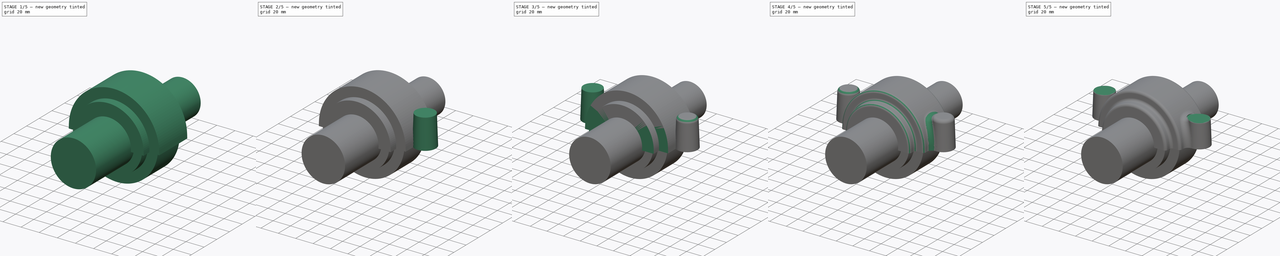
[diagram: build sequence overview — one tinted view per stage of 5, left to right]
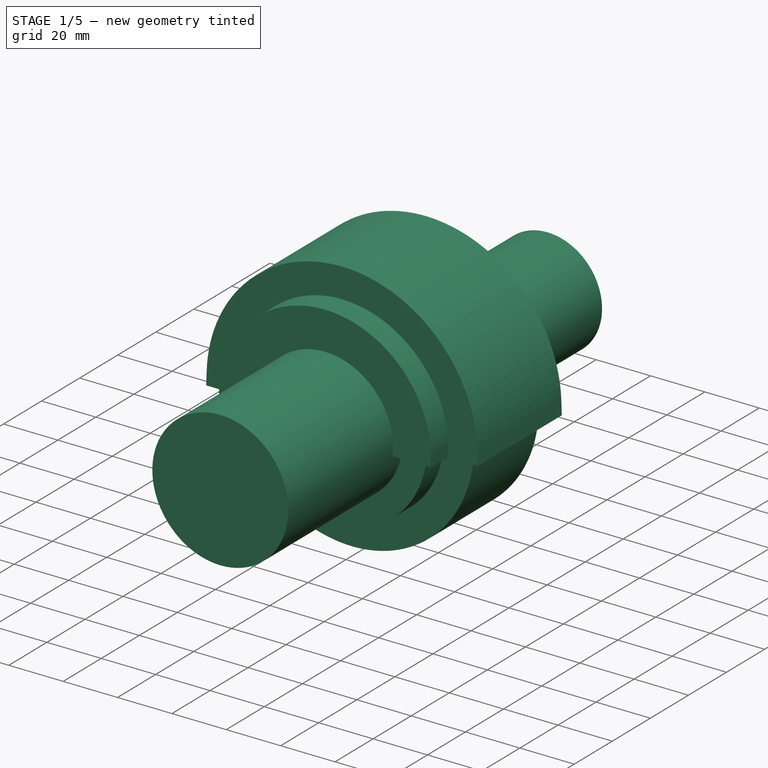
[diagram: stage 1 of 5 — iso view after this stage's code; geometry added in this stage tinted green]
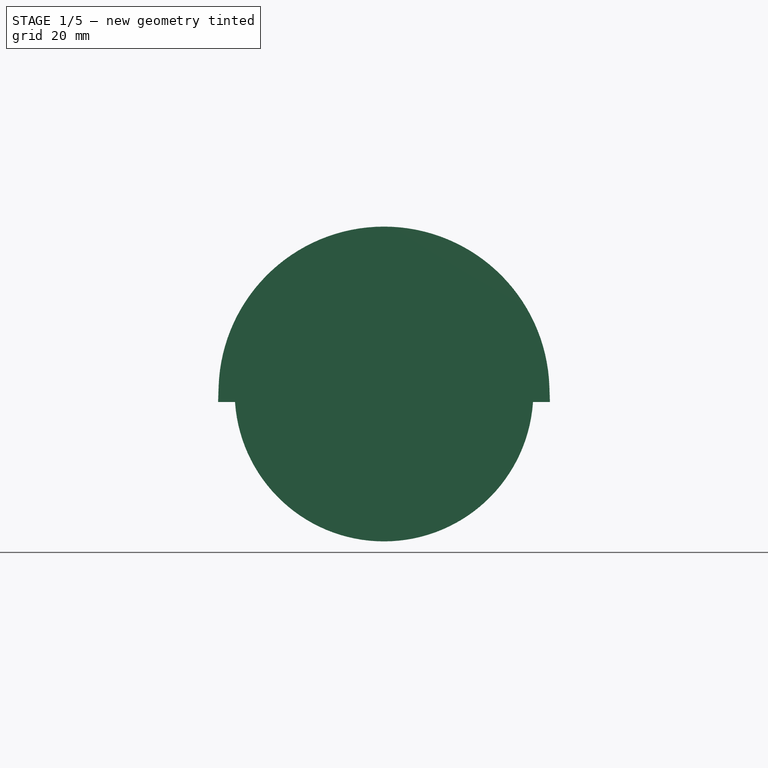
[diagram: stage 1 of 5 — front view after this stage's code; geometry added in this stage tinted green]
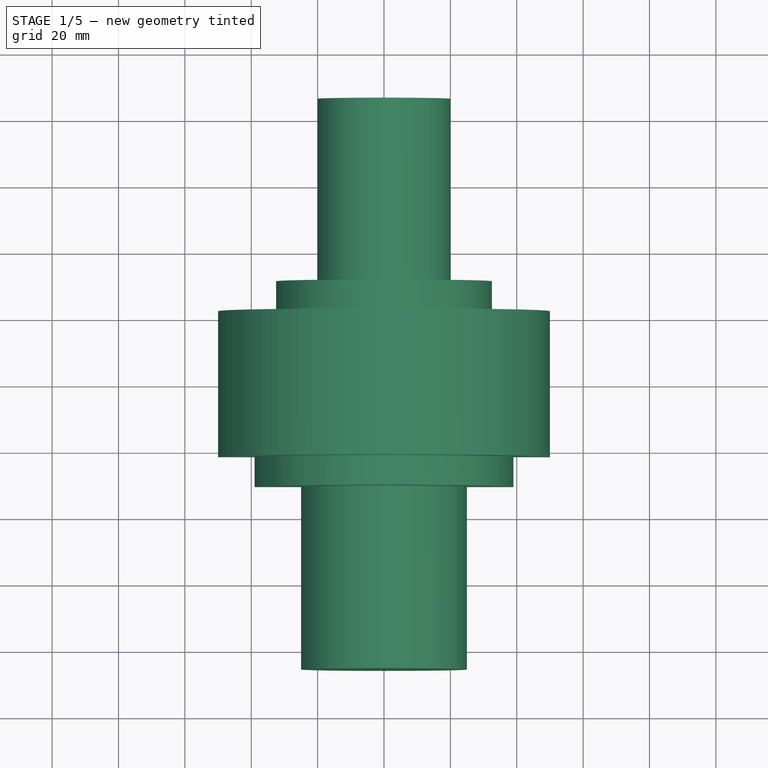
[diagram: stage 1 of 5 — top view after this stage's code; geometry added in this stage tinted green]
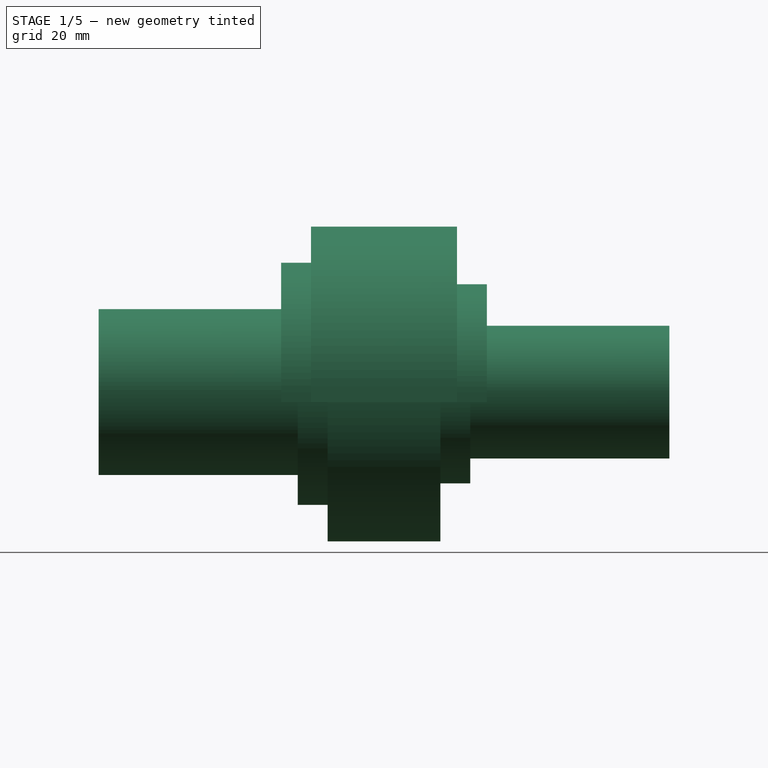
[diagram: stage 1 of 5 — right view after this stage's code; geometry added in this stage tinted green]
FCSTD DOCUMENT  (FreeCAD 0.18R4 (GitTag))
Label: Bearingholder Tutorial I
License: All rights reserved
LicenseURL: http://en.wikipedia.org/wiki/All_rights_reserved
objects: Sketcher::SketchObject×10, PartDesign::Pocket×7, PartDesign::Fillet×6, PartDesign::Plane×5, PartDesign::Revolution×2, PartDesign::Mirrored×2, PartDesign::Body×2, PartDesign::Pad×1, PartDesign::Line×1, PartDesign::Draft×1
note: 47 computed .brp shape members not serialized (recipe doc carries the construction recipe); baked Part::Feature solids carry a one-line shape summary decoded from their .brp

FEATURE [PartDesign::Plane] DatumPlane  label="Plane_BoltAxis"
  AttachmentOffset = pos=(0,0,57) rot=(0,0,1;0rad)
  Length = 76.4821
  MapMode = 4
  Placement = pos=(57,0,0) rot=(0.57735,0.57735,0.57735;2.0944rad)
  ResizeMode = 0
  Support = -> [XY_Plane]
  Width = 72.237
FEATURE [PartDesign::Plane] DatumPlane001  label="Plane_BoltHead"
  AttachmentOffset = pos=(0,0,28) rot=(0,0,1;0rad)
  Length = 156.986
  MapMode = 5
  Placement = pos=(0,0,28) rot=(0,0,1;0rad)
  ResizeMode = 0
  Support = -> [XY_Plane]
  Width = 82.9158
FEATURE [PartDesign::Plane] DatumPlane002  label="Plane_FrontSide"
  AttachmentOffset = pos=(0,0,22) rot=(0,0,1;0rad)
  Length = 156.352
  MapMode = 5
  Placement = pos=(0,-22,-4.9e-15) rot=(1,0,0;1.5708rad)
  ResizeMode = 0
  Support = -> [XZ_Plane]
  Width = 78.0368
FEATURE [PartDesign::Plane] DatumPlane003  label="Plane_BackSide"
  AttachmentOffset = pos=(0,0,-22) rot=(0,0,1;0rad)
  Length = 156.352
  MapMode = 5
  Placement = pos=(0,22,4.9e-15) rot=(1,0,0;1.5708rad)
  ResizeMode = 0
  Support = -> [XZ_Plane]
  Width = 78.0368
FEATURE [Sketcher::SketchObject] Sketch
  ExternalGeometry = -> [DatumPlane]
  MapMode = 5
  Placement = pos=(0,0,0) rot=(1,0,0;1.5708rad)
  Support = -> [XZ_Plane]
  sketch-geometry (9):
    g0: LineSegment StartX=22.798 StartY=-3 StartZ=0 EndX=50 EndY=-3 EndZ=0
    g1: LineSegment StartX=-49.8345 StartY=1.74028 StartZ=0 EndX=-50 EndY=-2.99997 EndZ=0
    g2: LineSegment StartX=-50 StartY=-2.99997 StartZ=0 EndX=-22.798 EndY=-2.99997 EndZ=0
    g3: LineSegment StartX=50 StartY=-3 StartZ=0 EndX=49.8345 EndY=1.74026 EndZ=0
    g4: ArcOfCircle CenterX=0 CenterY=0 CenterZ=0 NormalX=0 NormalY=0 NormalZ=1 AngleXU=0 Radius=49.8648 StartAngle=0.0349066 EndAngle=3.10669
    g5: LineSegment StartX=-22.798 StartY=-2.99997 StartZ=0 EndX=-22.4335 EndY=1.72915 EndZ=0
    g6: ArcOfCircle CenterX=0 CenterY=0 CenterZ=0 NormalX=0 NormalY=0 NormalZ=1 AngleXU=0 Radius=22.5 StartAngle=0.0769256 EndAngle=3.06467
    g7: LineSegment StartX=22.4335 StartY=1.72912 StartZ=0 EndX=22.798 EndY=-3 EndZ=0
    g8: GeomPoint X=57 Y=0 Z=0
  constraints (24):
    c: Coincident(g1,g2)
    c: Horizontal(g2)
    c: Horizontal(g0)
    c: Equal(g2,g0)
    c: DistanceY(g0,g-1) = 3
    c: Tangent(g3,g4) = -1.5708
    c: Tangent(g5,g6) = 1.5708
    c: Coincident(g6,g7)
    c: Coincident(g5,g2)
    c: Coincident(g0,g7)
    c: Tangent(g6,g7)
    c: Coincident(g4,g1)
    c: Coincident(g4,g-1)
    c: Coincident(g6,g4)
    c: Equal(g1,g5)
    c: Equal(g7,g5)
    c: Equal(g3,g7)
    c: Radius(g6) = 22.5
    c: Tangent(g1,g4)
    c: Coincident(g0,g3)
    c: Angle(g-2,g3) = 0.0349066
    c: DistanceX(g0,g8) = 7
    c: PointOnObject(g8,g-3)
    c: PointOnObject(g8,g-1)
FEATURE [PartDesign::Pad] Pad
  Length = 62
  Length2 = 100
  Midplane = true
  Placement = pos=(0,0,0) rot=(1,0,0;1.5708rad)
  Profile = -> Sketch
  Type = 0
FEATURE [Sketcher::SketchObject] Sketch001
  MapMode = 5
  Placement = pos=(0,-22,-4.9e-15) rot=(1,0,0;1.5708rad)
  Support = -> [DatumPlane002]
  sketch-geometry (8):
    g0: LineSegment StartX=-60 StartY=-3 StartZ=0 EndX=-39 EndY=-3 EndZ=0
    g1: LineSegment StartX=60 StartY=-3 StartZ=0 EndX=60 EndY=57 EndZ=0
    g2: LineSegment StartX=60 StartY=57 StartZ=0 EndX=-60 EndY=57 EndZ=0
    g3: LineSegment StartX=-60 StartY=57 StartZ=0 EndX=-60 EndY=-3 EndZ=0
    g4: LineSegment StartX=-39 StartY=-3 StartZ=0 EndX=-39 EndY=4.9e-15 EndZ=0
    g5: ArcOfCircle CenterX=0 CenterY=0 CenterZ=0 NormalX=0 NormalY=0 NormalZ=1 AngleXU=0 Radius=39 StartAngle=2.12035e-06 EndAngle=3.14159
    g6: LineSegment StartX=39 StartY=8.26938e-05 StartZ=0 EndX=39 EndY=-3 EndZ=0
    g7: LineSegment StartX=39 StartY=-3 StartZ=0 EndX=60 EndY=-3 EndZ=0
  constraints (23):
    c: Coincident(g7,g1)
    c: Coincident(g1,g2)
    c: Coincident(g2,g3)
    c: Coincident(g3,g0)
    c: Horizontal(g0)
    c: Horizontal(g2)
    c: Vertical(g1)
    c: Vertical(g3)
    c: Tangent(g4,g5) = 1.5708
    c: Coincident(g5,g6)
    c: Tangent(g0,g7)
    c: Coincident(g6,g7)
    c: Coincident(g0,g4)
    c: Tangent(g6,g5)
    c: Vertical(g6)
    c: Vertical(g4)
    c: PointOnObject(g5,g-2)
    c: PointOnObject(g5,g-1)
    c: Equal(g0,g7)
    c: DistanceX(g2,g1) = 120
    c: DistanceY(g0,g2) = 60
    c: DistanceY(g4,g4) = 3
    c: Radius(g5) = 39
FEATURE [PartDesign::Pocket] Pocket
  BaseFeature = -> Pad
  Length = 5
  Length2 = 100
  Placement = pos=(0,0,0) rot=(1,0,0;1.5708rad)
  Profile = -> Sketch001
  Reversed = true
  Type = 1
FEATURE [Sketcher::SketchObject] Sketch002
  MapMode = 2
  Placement = pos=(0,22,4.9e-15) rot=(1,0,0;1.5708rad)
  Support = -> [DatumPlane003]
  sketch-geometry (8):
    g0: LineSegment StartX=-60 StartY=-3 StartZ=0 EndX=-32.5 EndY=-3 EndZ=0
    g1: LineSegment StartX=60 StartY=-3 StartZ=0 EndX=60 EndY=57 EndZ=0
    g2: LineSegment StartX=60 StartY=57 StartZ=0 EndX=-60 EndY=57 EndZ=0
    g3: LineSegment StartX=-60 StartY=57 StartZ=0 EndX=-60 EndY=-3 EndZ=0
    g4: LineSegment StartX=-32.5 StartY=-3 StartZ=0 EndX=-32.5 EndY=4e-15 EndZ=0
    g5: ArcOfCircle CenterX=0 CenterY=0 CenterZ=0 NormalX=0 NormalY=0 NormalZ=1 AngleXU=0 Radius=32.5 StartAngle=1.68808e-06 EndAngle=3.14159
    g6: LineSegment StartX=32.5 StartY=5.48626e-05 StartZ=0 EndX=32.5 EndY=-3 EndZ=0
    g7: LineSegment StartX=32.5 StartY=-3 StartZ=0 EndX=60 EndY=-3 EndZ=0
  constraints (23):
    c: Coincident(g7,g1)
    c: Coincident(g1,g2)
    c: Coincident(g2,g3)
    c: Coincident(g3,g0)
    c: Horizontal(g0)
    c: Horizontal(g2)
    c: Vertical(g1)
    c: Vertical(g3)
    c: Tangent(g4,g5) = 1.5708
    c: Coincident(g5,g6)
    c: Tangent(g0,g7)
    c: Coincident(g6,g7)
    c: Coincident(g0,g4)
    c: Tangent(g6,g5)
    c: Vertical(g6)
    c: Vertical(g4)
    c: PointOnObject(g5,g-2)
    c: PointOnObject(g5,g-1)
    c: Equal(g0,g7)
    c: DistanceX(g2,g1) = 120
    c: DistanceY(g0,g2) = 60
    c: DistanceY(g4,g4) = 3
    c: Radius(g5) = 32.5
FEATURE [PartDesign::Pocket] Pocket001
  BaseFeature = -> Pocket
  Length = 5
  Length2 = 100
  Placement = pos=(0,0,0) rot=(1,0,0;1.5708rad)
  Profile = -> Sketch002
  Type = 1
FEATURE [PartDesign::Body] Body
  Group = -> [DatumPlane,DatumPlane001,DatumPlane002,DatumPlane003,Sketch,Pad,Sketch001,Pocket,Sketch002,Pocket001,Sketch003,Sketch004,Sketch005,Pocket002,Pocket003,Pocket004,DatumLine,Sketch006,Revolution,Mirrored,DatumPlane004,Draft,Fillet,Fillet001,Fillet002,Fillet003,Fillet004,Fillet005,Sketch007,Pocket005,Sketch008,Pocket006,Mirrored001]
  Origin = -> Origin
  Tip = -> Mirrored001
FEATURE [Sketcher::SketchObject] Sketch009
  MapMode = 5
  Placement = pos=(0,0,0) rot=(0.57735,0.57735,0.57735;2.0944rad)
  Support = -> [YZ_Plane]
  sketch-geometry (12):
    g0: LineSegment StartX=86 StartY=0 StartZ=0 EndX=86 EndY=20 EndZ=0
    g1: LineSegment StartX=86 StartY=20 StartZ=0 EndX=26 EndY=20 EndZ=0
    g2: LineSegment StartX=26 StartY=20 StartZ=0 EndX=26 EndY=27.5 EndZ=0
    g3: LineSegment StartX=26 StartY=27.5 StartZ=0 EndX=17 EndY=27.5 EndZ=0
    g4: LineSegment StartX=17 StartY=27.5 StartZ=0 EndX=17 EndY=45 EndZ=0
    g5: LineSegment StartX=17 StartY=45 StartZ=0 EndX=-17 EndY=45 EndZ=0
    g6: LineSegment StartX=-17 StartY=45 StartZ=0 EndX=-17 EndY=34 EndZ=0
    g7: LineSegment StartX=-17 StartY=34 StartZ=0 EndX=-26 EndY=34 EndZ=0
    g8: LineSegment StartX=-26 StartY=34 StartZ=0 EndX=-26 EndY=25 EndZ=0
    g9: LineSegment StartX=-26 StartY=25 StartZ=0 EndX=-86 EndY=25 EndZ=0
    g10: LineSegment StartX=-86 StartY=25 StartZ=0 EndX=-86 EndY=0 EndZ=0
    g11: LineSegment StartX=-86 StartY=0 StartZ=0 EndX=86 EndY=0 EndZ=0
  constraints (35):
    c: Coincident(g0,g1)
    c: Coincident(g1,g2)
    c: Coincident(g2,g3)
    c: Coincident(g3,g4)
    c: Coincident(g4,g5)
    c: Coincident(g5,g6)
    c: Coincident(g6,g7)
    c: Coincident(g7,g8)
    c: Coincident(g8,g9)
    c: Coincident(g9,g10)
    c: Coincident(g10,g11)
    c: Coincident(g11,g0)
    c: Horizontal(g7)
    c: Horizontal(g3)
    c: Horizontal(g1)
    c: Horizontal(g11)
    c: Horizontal(g9)
    c: Vertical(g4)
    c: Vertical(g2)
    c: Vertical(g0)
    c: Vertical(g6)
    c: Vertical(g8)
    c: Vertical(g10)
    c: PointOnObject(g0,g-1)
    c: DistanceY(g0,g0) = 20
    c: DistanceY(g0,g2) = 27.5
    c: DistanceY(g10,g5) = 45
    c: DistanceY(g10,g7) = 34
    c: DistanceY(g10,g9) = 25
    c: DistanceX(g9,g9) = 60
    c: DistanceX(g7,g7) = 9
    c: DistanceX(g5,g5) = 34
    c: DistanceX(g3,g3) = 9
    c: DistanceX(g1,g1) = 60
    c: Symmetric(g4,g5,g-2)
FEATURE [PartDesign::Revolution] Revolution001
  Angle = 360
  Axis = (1e-16,1,-1e-16)
  Base = (0,0,0)
  Placement = pos=(0,0,0) rot=(0.57735,0.57735,0.57735;2.0944rad)
  Profile = -> Sketch009
  ReferenceAxis = -> Y_Axis001
FEATURE [PartDesign::Body] Body001
  Group = -> [Sketch009,Revolution001]
  Origin = -> Origin001
  Tip = -> Revolution001
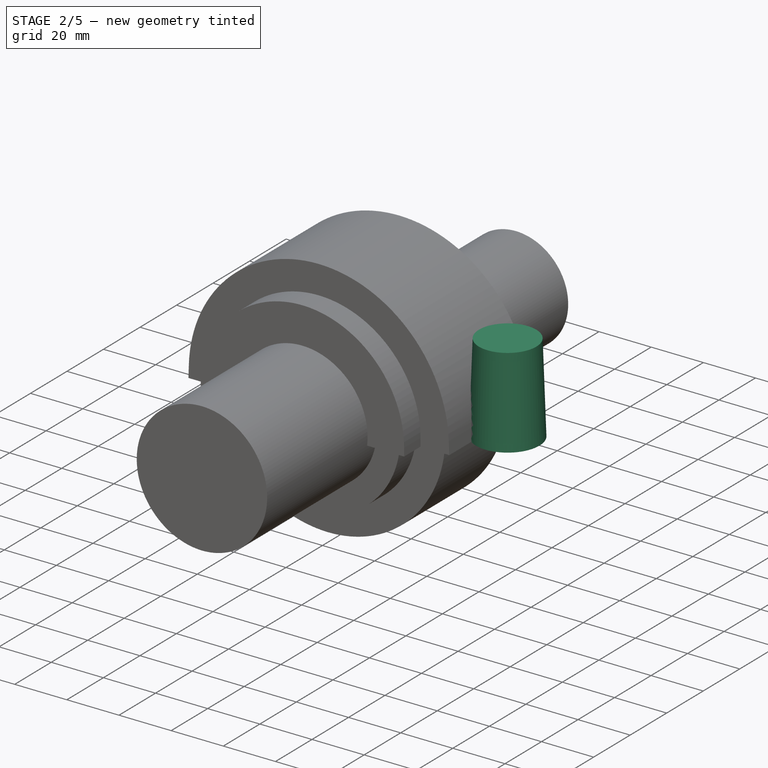
[diagram: stage 2 of 5 — iso view after this stage's code; geometry added in this stage tinted green]
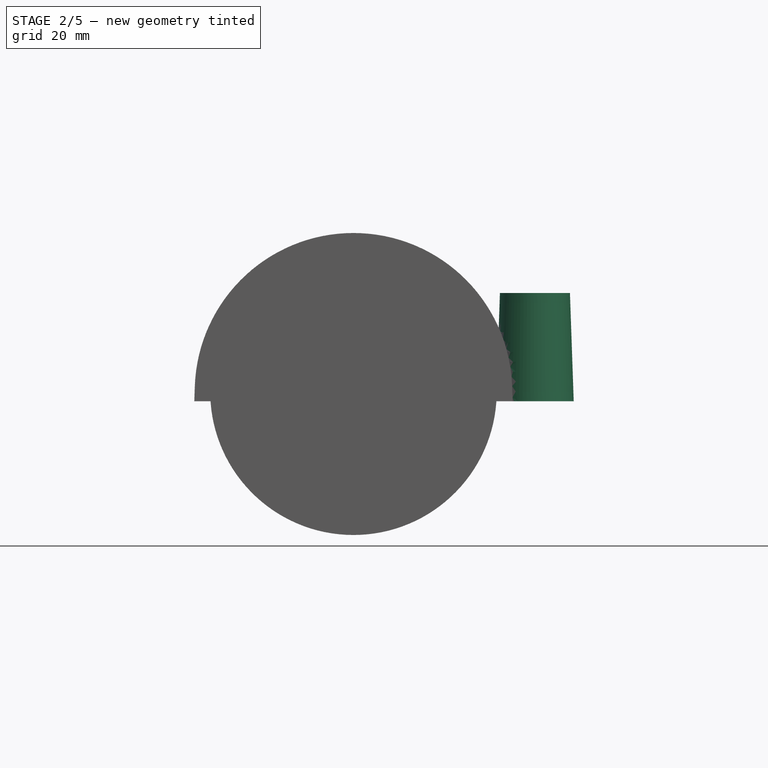
[diagram: stage 2 of 5 — front view after this stage's code; geometry added in this stage tinted green]
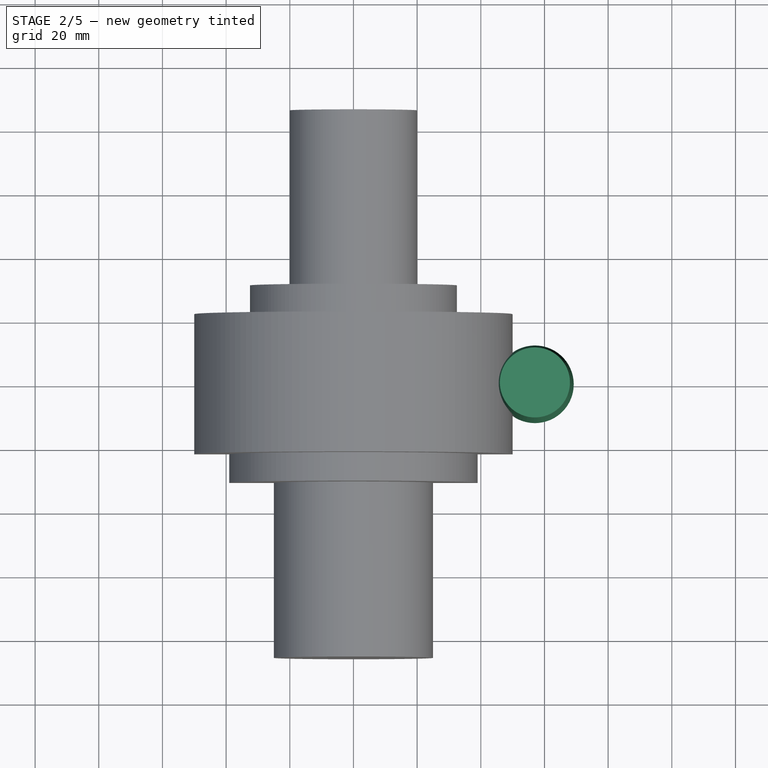
[diagram: stage 2 of 5 — top view after this stage's code; geometry added in this stage tinted green]
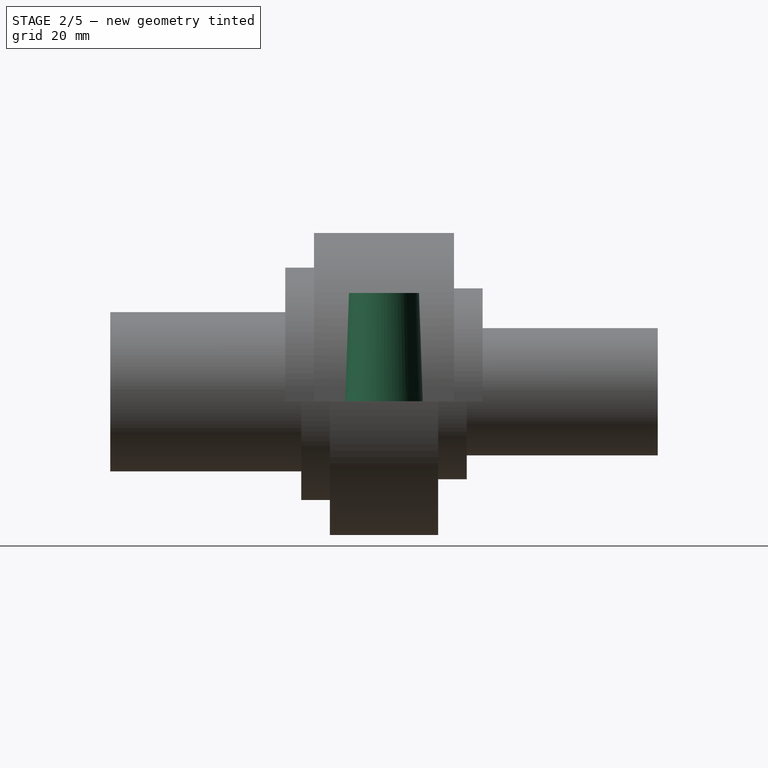
[diagram: stage 2 of 5 — right view after this stage's code; geometry added in this stage tinted green]
FEATURE [Sketcher::SketchObject] Sketch003
  ExternalGeometry = -> [DatumPlane]
  MapMode = 5
  Placement = pos=(0,0,0) rot=(1,0,0;1.5708rad)
  Support = -> [XZ_Plane]
  sketch-geometry (5):
    g0: LineSegment StartX=-42.1304 StartY=-3 StartZ=0 EndX=42.1304 EndY=-3 EndZ=0
    g1: LineSegment StartX=-41.9744 StartY=1.46578 StartZ=0 EndX=-42.1304 EndY=-3 EndZ=0
    g2: LineSegment StartX=42.1304 StartY=-3 StartZ=0 EndX=41.9744 EndY=1.46578 EndZ=0
    g3: ArcOfCircle CenterX=0 CenterY=0 CenterZ=0 NormalX=0 NormalY=0 NormalZ=1 AngleXU=0 Radius=42 StartAngle=0.0349066 EndAngle=3.10669
    g4: GeomPoint X=57 Y=0 Z=0
  constraints (13):
    c: Horizontal(g0)
    c: DistanceY(g0,g-1) = 3
    c: Tangent(g2,g3) = -1.5708
    c: Coincident(g3,g1)
    c: Coincident(g3,g-1)
    c: Tangent(g1,g3)
    c: Coincident(g0,g2)
    c: PointOnObject(g4,g-3)
    c: PointOnObject(g4,g-1)
    c: Coincident(g0,g1)
    c: Angle(g-2,g2) = 0.0349066
    c: Radius(g3) = 42
    c: Equal(g2,g1)
FEATURE [Sketcher::SketchObject] Sketch004
  ExternalGeometry = -> [DatumPlane]
  MapMode = 5
  Placement = pos=(0,0,0) rot=(1,0,0;1.5708rad)
  Support = -> [XZ_Plane]
  sketch-geometry (5):
    g0: LineSegment StartX=-31.1237 StartY=-3 StartZ=0 EndX=31.1237 EndY=-3 EndZ=0
    g1: LineSegment StartX=-30.9811 StartY=1.08188 StartZ=0 EndX=-31.1237 EndY=-3 EndZ=0
    g2: LineSegment StartX=31.1237 StartY=-3 StartZ=0 EndX=30.9811 EndY=1.08188 EndZ=0
    g3: ArcOfCircle CenterX=0 CenterY=0 CenterZ=0 NormalX=0 NormalY=0 NormalZ=1 AngleXU=0 Radius=31 StartAngle=0.0349066 EndAngle=3.10669
    g4: GeomPoint X=57 Y=0 Z=0
  constraints (13):
    c: Horizontal(g0)
    c: DistanceY(g0,g-1) = 3
    c: Tangent(g2,g3) = -1.5708
    c: Coincident(g3,g1)
    c: Coincident(g3,g-1)
    c: Tangent(g1,g3)
    c: Coincident(g0,g2)
    c: PointOnObject(g4,g-3)
    c: PointOnObject(g4,g-1)
    c: Coincident(g0,g1)
    c: Angle(g-2,g2) = 0.0349066
    c: Radius(g3) = 31
    c: Equal(g2,g1)
FEATURE [Sketcher::SketchObject] Sketch005
  ExternalGeometry = -> [DatumPlane]
  MapMode = 5
  Placement = pos=(0,0,0) rot=(1,0,0;1.5708rad)
  Support = -> [XZ_Plane]
  sketch-geometry (5):
    g0: LineSegment StartX=-24.6197 StartY=-3 StartZ=0 EndX=24.6197 EndY=-3 EndZ=0
    g1: LineSegment StartX=-24.4851 StartY=0.855037 StartZ=0 EndX=-24.6197 EndY=-3 EndZ=0
    g2: LineSegment StartX=24.6197 StartY=-3 StartZ=0 EndX=24.4851 EndY=0.855038 EndZ=0
    g3: ArcOfCircle CenterX=0 CenterY=0 CenterZ=0 NormalX=0 NormalY=0 NormalZ=1 AngleXU=0 Radius=24.5 StartAngle=0.0349066 EndAngle=3.10669
    g4: GeomPoint X=57 Y=0 Z=0
  constraints (13):
    c: Horizontal(g0)
    c: DistanceY(g0,g-1) = 3
    c: Tangent(g2,g3) = -1.5708
    c: Coincident(g3,g1)
    c: Coincident(g3,g-1)
    c: Tangent(g1,g3)
    c: Coincident(g0,g2)
    c: PointOnObject(g4,g-3)
    c: PointOnObject(g4,g-1)
    c: Coincident(g0,g1)
    c: Angle(g-2,g2) = 0.0349066
    c: Radius(g3) = 24.5
    c: Equal(g2,g1)
FEATURE [PartDesign::Pocket] Pocket002
  BaseFeature = -> Pocket001
  Length = 28
  Length2 = 100
  Midplane = true
  Placement = pos=(0,0,0) rot=(1,0,0;1.5708rad)
  Profile = -> Sketch003
  Type = 0
FEATURE [PartDesign::Pocket] Pocket003
  BaseFeature = -> Pocket002
  Length = 23
  Length2 = 100
  Placement = pos=(0,0,0) rot=(1,0,0;1.5708rad)
  Profile = -> Sketch004
  Reversed = true
  Type = 0
FEATURE [PartDesign::Pocket] Pocket004
  BaseFeature = -> Pocket003
  Length = 23
  Length2 = 100
  Placement = pos=(0,0,0) rot=(1,0,0;1.5708rad)
  Profile = -> Sketch005
  Type = 0
FEATURE [PartDesign::Line] DatumLine
  AttacherType = Attacher::AttachEngineLine
  MapMode = 17
  Placement = pos=(57,0,0) rot=(0.707107,0.707107,0;3.14159rad)
  Support = -> [DatumPlane]
FEATURE [Sketcher::SketchObject] Sketch006
  ExternalGeometry = -> [DatumPlane,DatumPlane001]
  MapMode = 5
  Placement = pos=(0,0,0) rot=(1,0,0;1.5708rad)
  Support = -> [XZ_Plane]
  sketch-geometry (5):
    g0: LineSegment StartX=57 StartY=-3 StartZ=0 EndX=57 EndY=31 EndZ=0
    g1: LineSegment StartX=57 StartY=31 StartZ=0 EndX=68 EndY=31 EndZ=0
    g2: LineSegment StartX=68 StartY=31 StartZ=0 EndX=69.1873 EndY=-3 EndZ=0
    g3: LineSegment StartX=69.1873 StartY=-3 StartZ=0 EndX=57 EndY=-3 EndZ=0
    g4: LineSegment [constr] StartX=51.9772 StartY=28 StartZ=0 EndX=77.9906 EndY=28 EndZ=0
  constraints (14):
    c: Coincident(g0,g1)
    c: Coincident(g1,g2)
    c: Coincident(g2,g3)
    c: Coincident(g3,g0)
    c: Horizontal(g3)
    c: DistanceY(g0,g-1) = 3
    c: Vertical(g0)
    c: PointOnObject(g0,g-3)
    c: Horizontal(g1)
    c: DistanceX(g1,g1) = 11
    c: Angle(g0,g2) = 0.0349066
    c: PointOnObject(g4,g-4)
    c: PointOnObject(g4,g-4)
    c: DistanceY(g4,g1) = 3
FEATURE [PartDesign::Revolution] Revolution
  Angle = 360
  Axis = (0,0,-1)
  Base = (57,0,0)
  BaseFeature = -> Pocket004
  Placement = pos=(0,0,0) rot=(1,0,0;1.5708rad)
  Profile = -> Sketch006
  ReferenceAxis = -> DatumLine
  Reversed = true
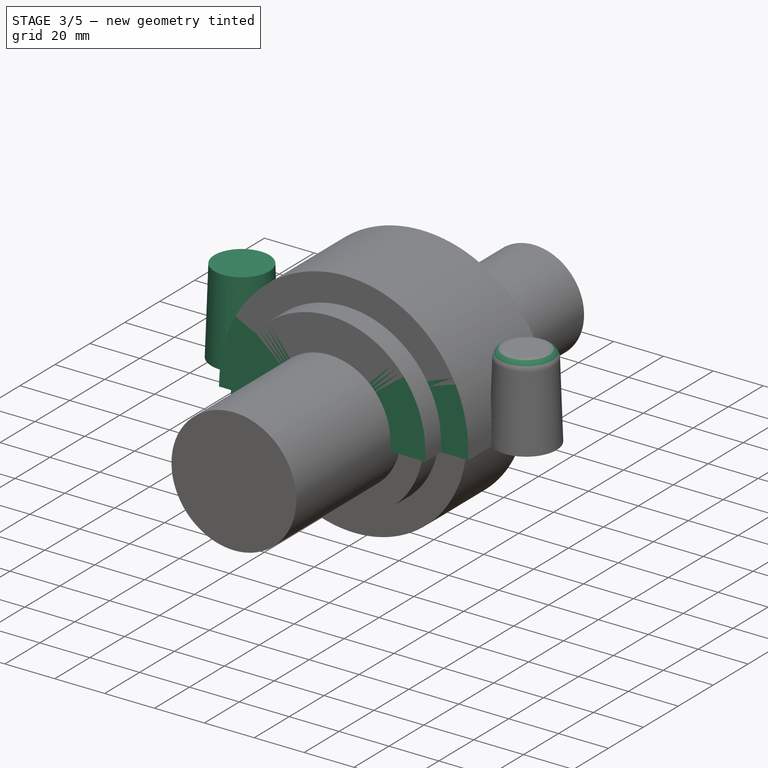
[diagram: stage 3 of 5 — iso view after this stage's code; geometry added in this stage tinted green]
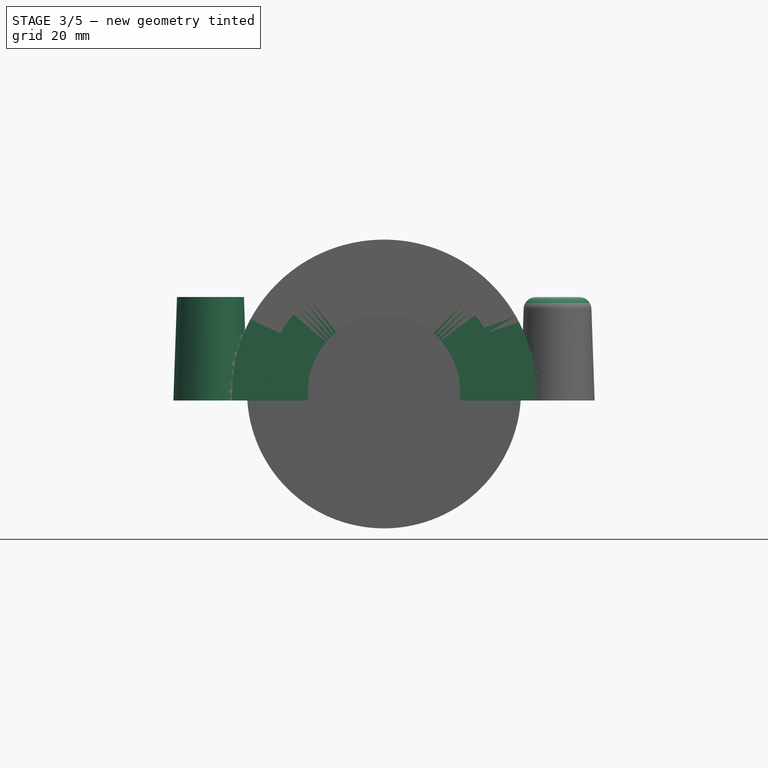
[diagram: stage 3 of 5 — front view after this stage's code; geometry added in this stage tinted green]
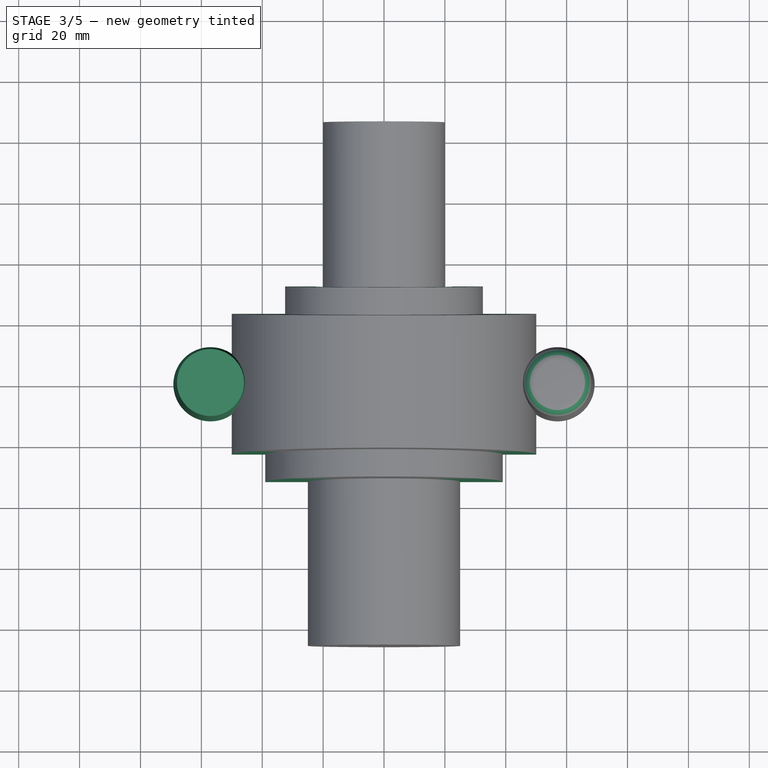
[diagram: stage 3 of 5 — top view after this stage's code; geometry added in this stage tinted green]
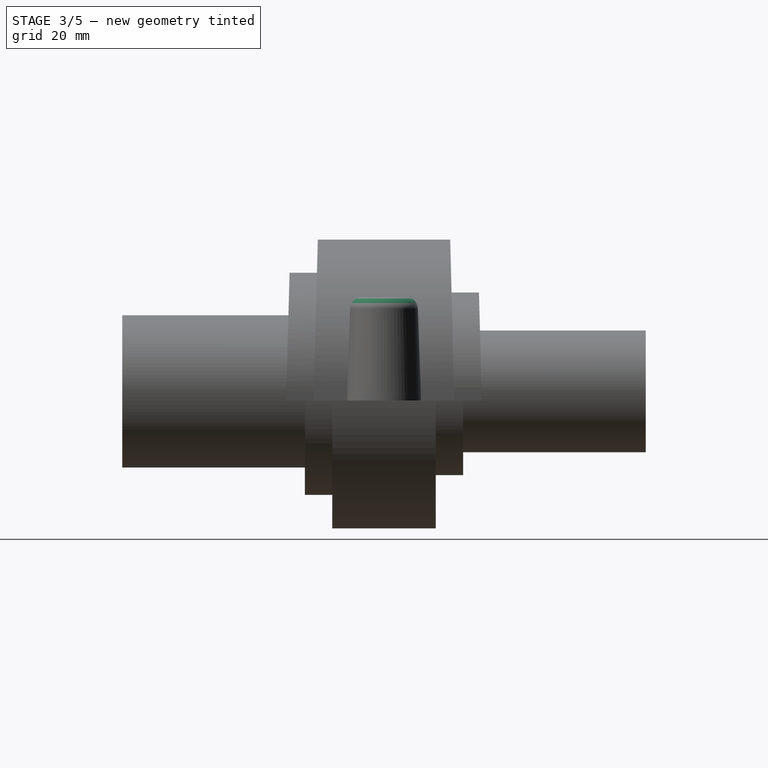
[diagram: stage 3 of 5 — right view after this stage's code; geometry added in this stage tinted green]
FEATURE [PartDesign::Mirrored] Mirrored
  BaseFeature = -> Revolution
  MirrorPlane = -> YZ_Plane
  Originals = -> [Revolution]
  Placement = pos=(0,0,0) rot=(1,0,0;1.5708rad)
FEATURE [PartDesign::Plane] DatumPlane004
  AttachmentOffset = pos=(0,0,40) rot=(0,0,1;0rad)
  Length = 156.986
  MapMode = 5
  Placement = pos=(0,0,40) rot=(0,0,1;0rad)
  ResizeMode = 0
  Support = -> [XY_Plane]
  Width = 82.9158
FEATURE [PartDesign::Draft] Draft
  Angle = 1.5
  Base = -> Mirrored [Face15,Face17,Face11,Face2]
  BaseFeature = -> Mirrored
  NeutralPlane = -> DatumPlane004
  Placement = pos=(0,0,0) rot=(1,0,0;1.5708rad)
FEATURE [PartDesign::Fillet] Fillet
  Base = -> Draft [Edge117]
  BaseFeature = -> Draft
  Placement = pos=(0,0,0) rot=(1,0,0;1.5708rad)
  Radius = 4
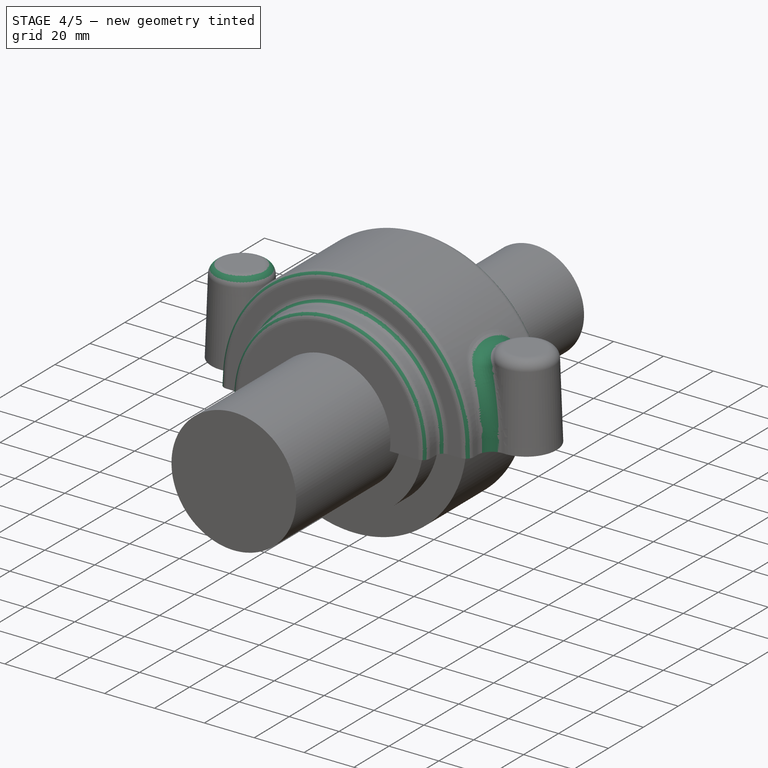
[diagram: stage 4 of 5 — iso view after this stage's code; geometry added in this stage tinted green]
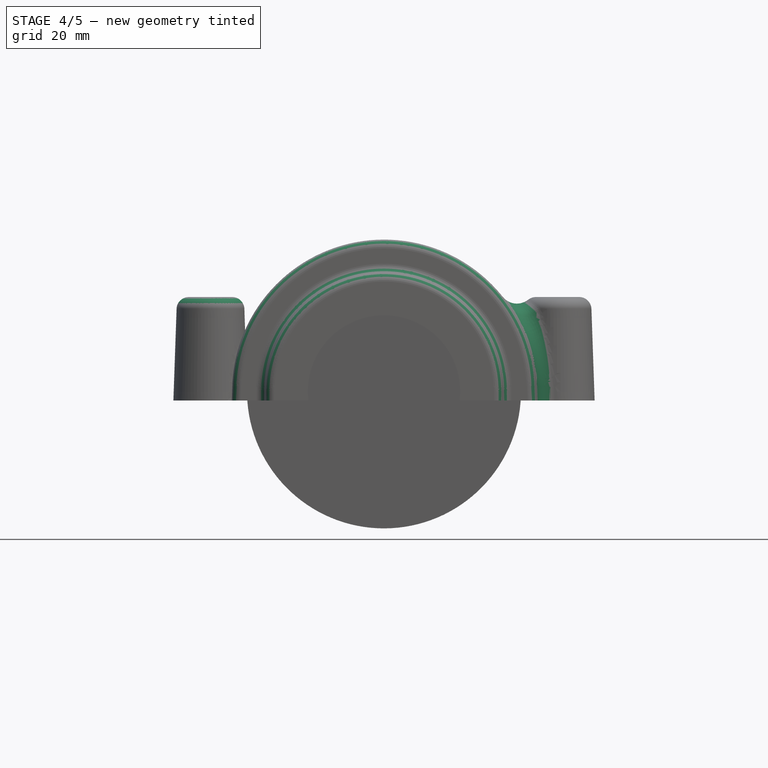
[diagram: stage 4 of 5 — front view after this stage's code; geometry added in this stage tinted green]
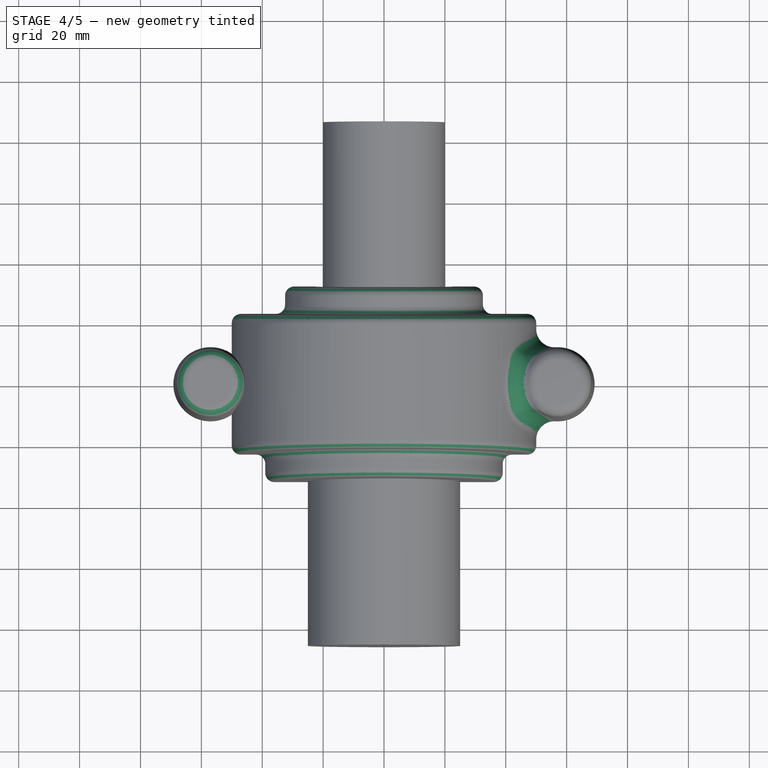
[diagram: stage 4 of 5 — top view after this stage's code; geometry added in this stage tinted green]
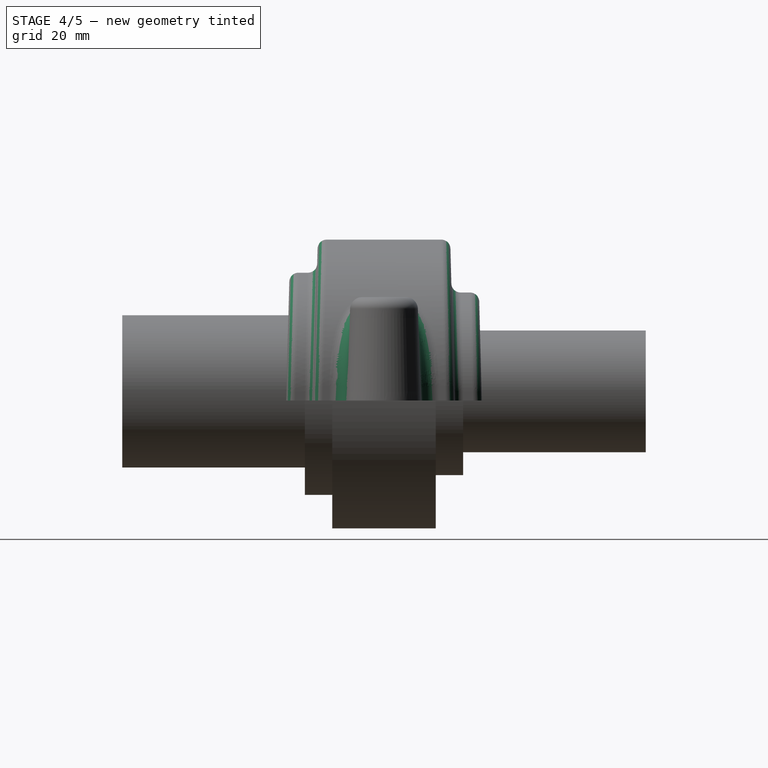
[diagram: stage 4 of 5 — right view after this stage's code; geometry added in this stage tinted green]
FEATURE [PartDesign::Fillet] Fillet001
  Base = -> Fillet [Edge8]
  BaseFeature = -> Fillet
  Placement = pos=(0,0,0) rot=(1,0,0;1.5708rad)
  Radius = 6
FEATURE [PartDesign::Fillet] Fillet002
  Base = -> Fillet001 [Edge66,Edge78,Edge68,Edge104,Edge54,Edge25]
  BaseFeature = -> Fillet001
  Placement = pos=(0,0,0) rot=(1,0,0;1.5708rad)
  Radius = 3
FEATURE [PartDesign::Fillet] Fillet003
  Base = -> Fillet002 [Edge26]
  BaseFeature = -> Fillet002
  Placement = pos=(0,0,0) rot=(1,0,0;1.5708rad)
  Radius = 4
FEATURE [PartDesign::Fillet] Fillet004
  Base = -> Fillet003 [Edge103,Edge87,Edge95,Edge105,Edge97,Edge89]
  BaseFeature = -> Fillet003
  Placement = pos=(0,0,0) rot=(1,0,0;1.5708rad)
  Radius = 3
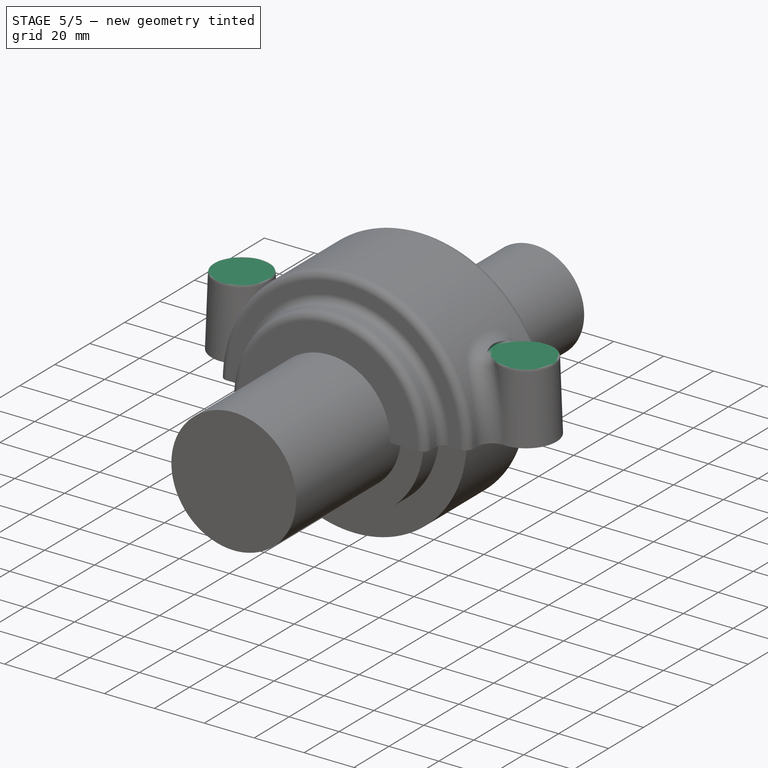
[diagram: stage 5 of 5 — iso view after this stage's code; geometry added in this stage tinted green]
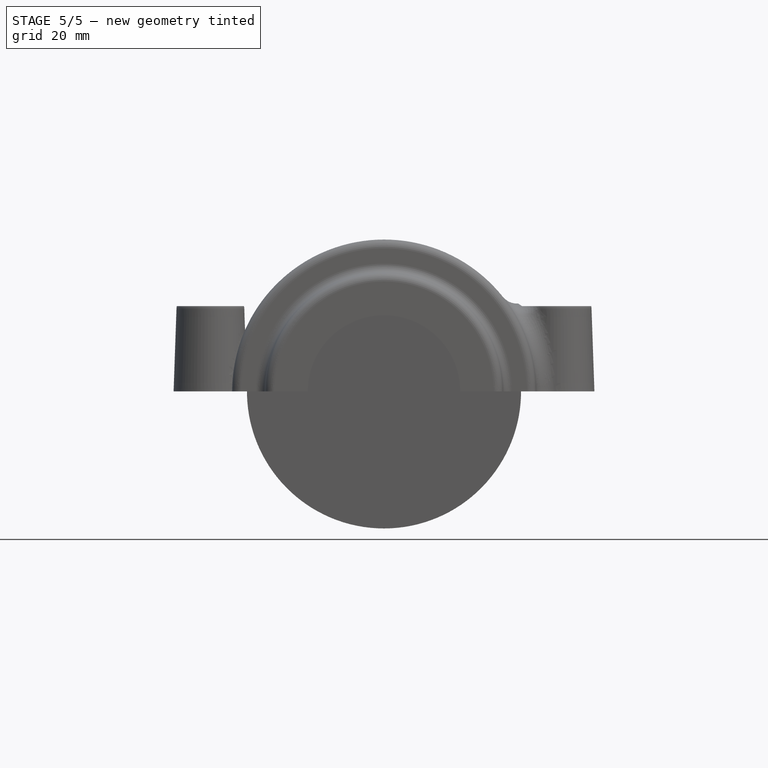
[diagram: stage 5 of 5 — front view after this stage's code; geometry added in this stage tinted green]
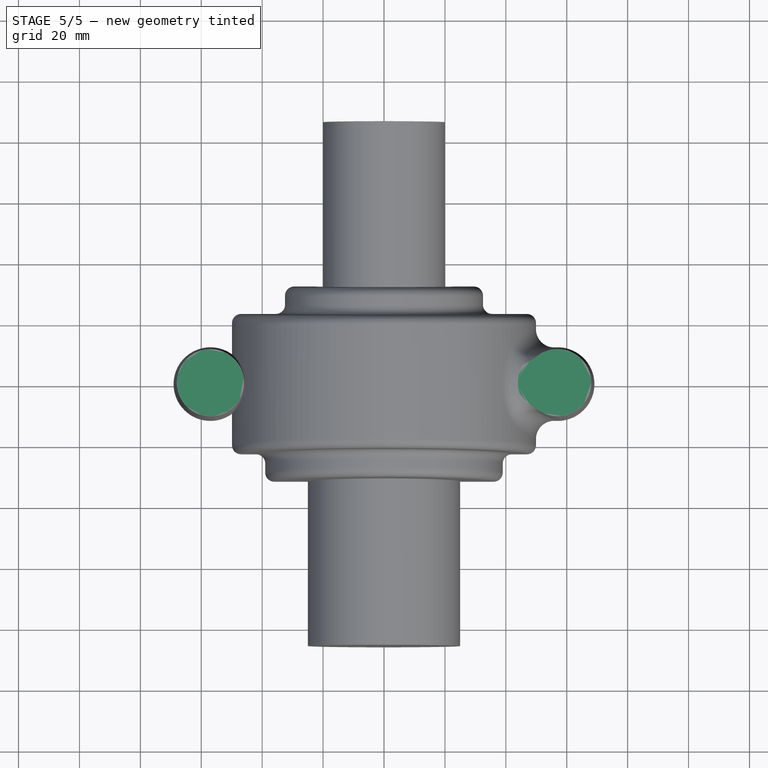
[diagram: stage 5 of 5 — top view after this stage's code; geometry added in this stage tinted green]
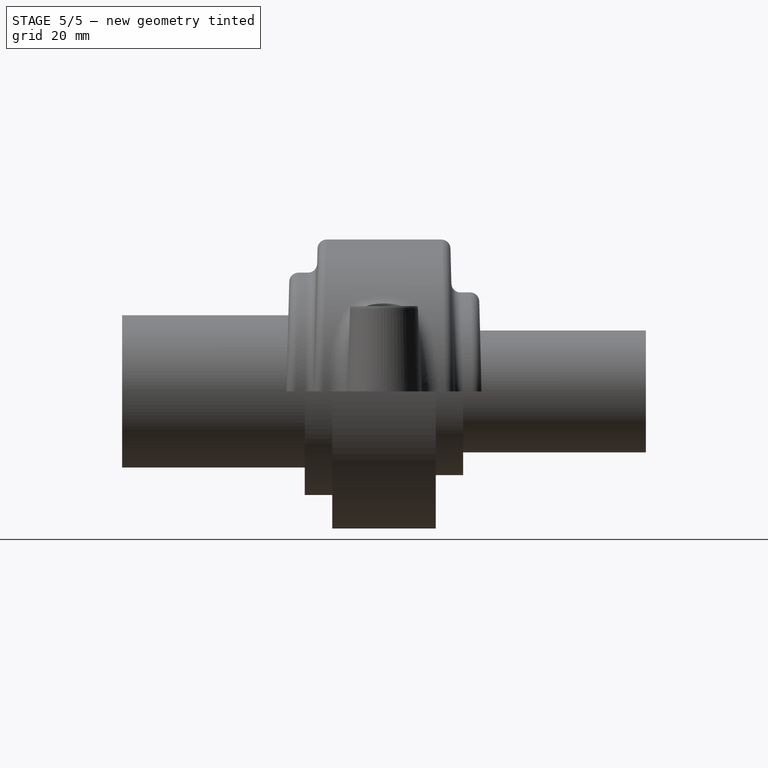
[diagram: stage 5 of 5 — right view after this stage's code; geometry added in this stage tinted green]
FEATURE [PartDesign::Fillet] Fillet005
  Base = -> Fillet004 [Edge1,Edge129]
  BaseFeature = -> Fillet004
  Placement = pos=(0,0,0) rot=(1,0,0;1.5708rad)
  Radius = 3
FEATURE [Sketcher::SketchObject] Sketch007
  MapMode = 5
  Support = -> [XY_Plane]
  sketch-geometry (4):
    g0: LineSegment StartX=-80 StartY=45 StartZ=0 EndX=80 EndY=45 EndZ=0
    g1: LineSegment StartX=80 StartY=45 StartZ=0 EndX=80 EndY=-45 EndZ=0
    g2: LineSegment StartX=80 StartY=-45 StartZ=0 EndX=-80 EndY=-45 EndZ=0
    g3: LineSegment StartX=-80 StartY=-45 StartZ=0 EndX=-80 EndY=45 EndZ=0
  constraints (10):
    c: Coincident(g0,g1)
    c: Coincident(g1,g2)
    c: Coincident(g2,g3)
    c: Coincident(g3,g0)
    c: Horizontal(g2)
    c: Vertical(g3)
    c: Symmetric(g0,g1,g-1)
    c: Symmetric(g0,g0,g-2)
    c: DistanceX(g0,g0) = 160
    c: DistanceY(g1,g1) = 90
FEATURE [PartDesign::Pocket] Pocket005
  BaseFeature = -> Fillet005
  Length = 5
  Length2 = 100
  Placement = pos=(0,0,0) rot=(1,0,0;1.5708rad)
  Profile = -> Sketch007
  Type = 1
FEATURE [Sketcher::SketchObject] Sketch008
  ExternalGeometry = -> [DatumLine]
  MapMode = 5
  Placement = pos=(0,0,28) rot=(0,0,1;0rad)
  Support = -> [DatumPlane001]
  sketch-geometry (1):
    g0: Circle CenterX=57 CenterY=0 CenterZ=0 NormalX=0 NormalY=0 NormalZ=1 AngleXU=0 Radius=13
  constraints (2):
    c: Coincident(g0,g-3)
    c: Radius(g0) = 13
FEATURE [PartDesign::Pocket] Pocket006
  BaseFeature = -> Pocket005
  Length = 5
  Length2 = 100
  Placement = pos=(0,0,0) rot=(1,0,0;1.5708rad)
  Profile = -> Sketch008
  Reversed = true
  Type = 1
FEATURE [PartDesign::Mirrored] Mirrored001
  BaseFeature = -> Pocket006
  MirrorPlane = -> YZ_Plane
  Originals = -> [Pocket006]
  Placement = pos=(0,0,0) rot=(1,0,0;1.5708rad)
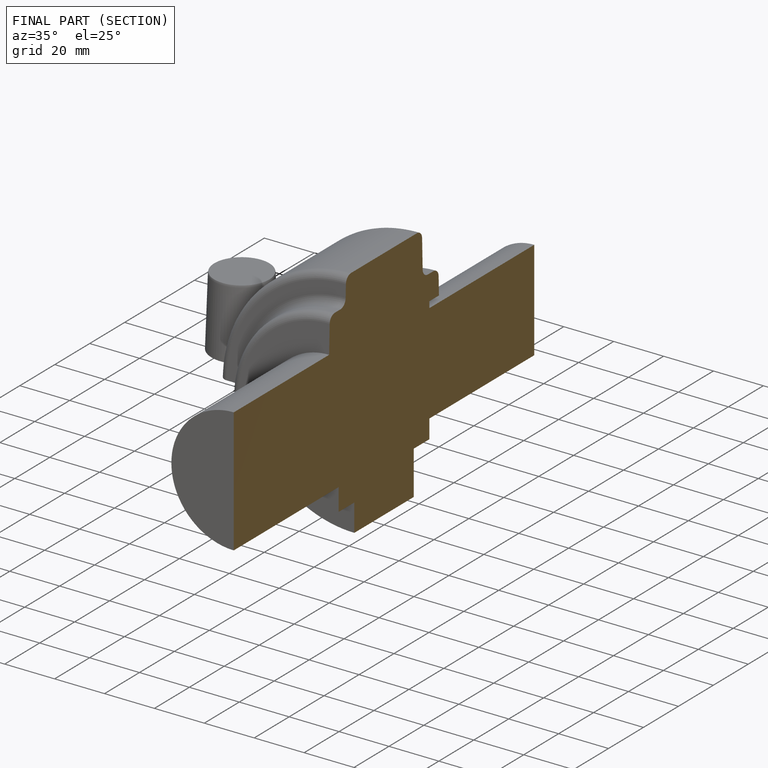
[diagram: finished part — half-section view (interior)]
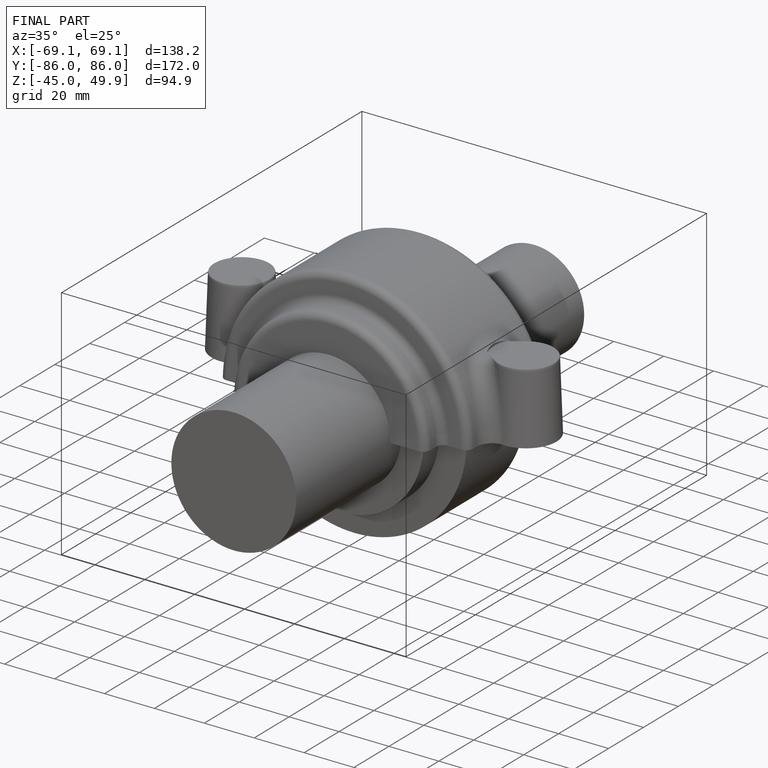
[diagram: finished part — iso view with bounding-box wireframe]
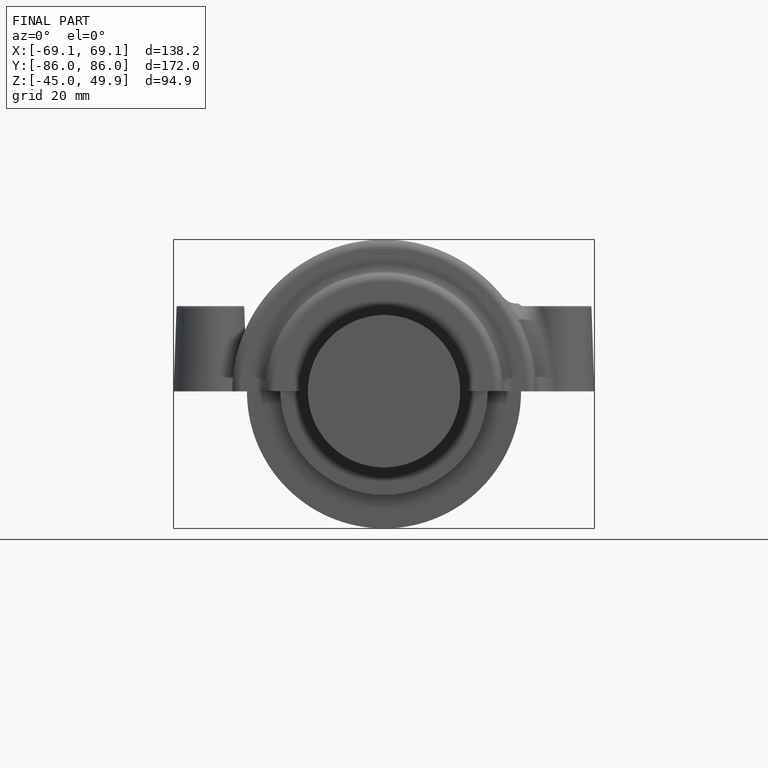
[diagram: finished part — front view with bounding-box wireframe]
